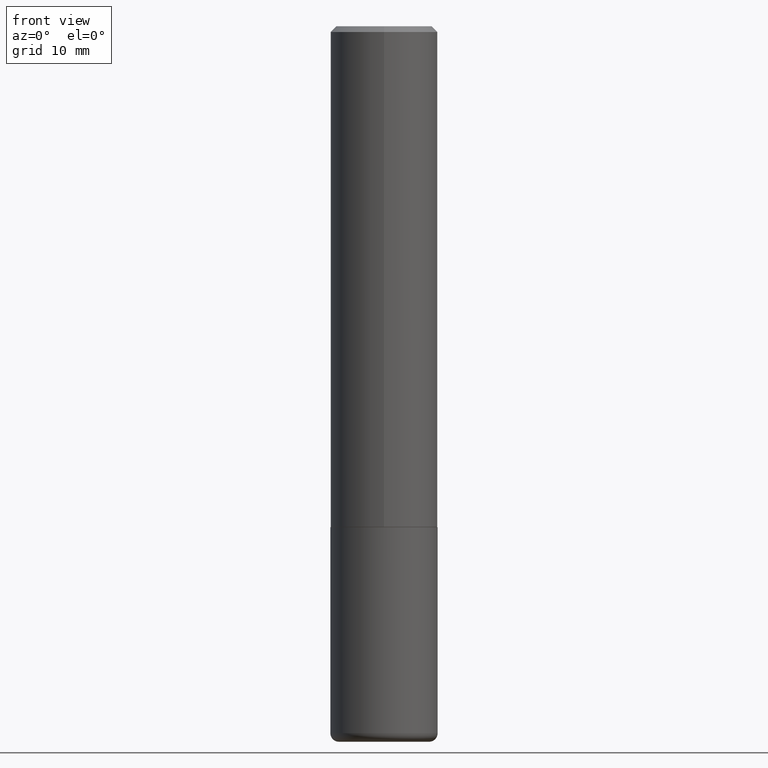
[diagram: clean part render]
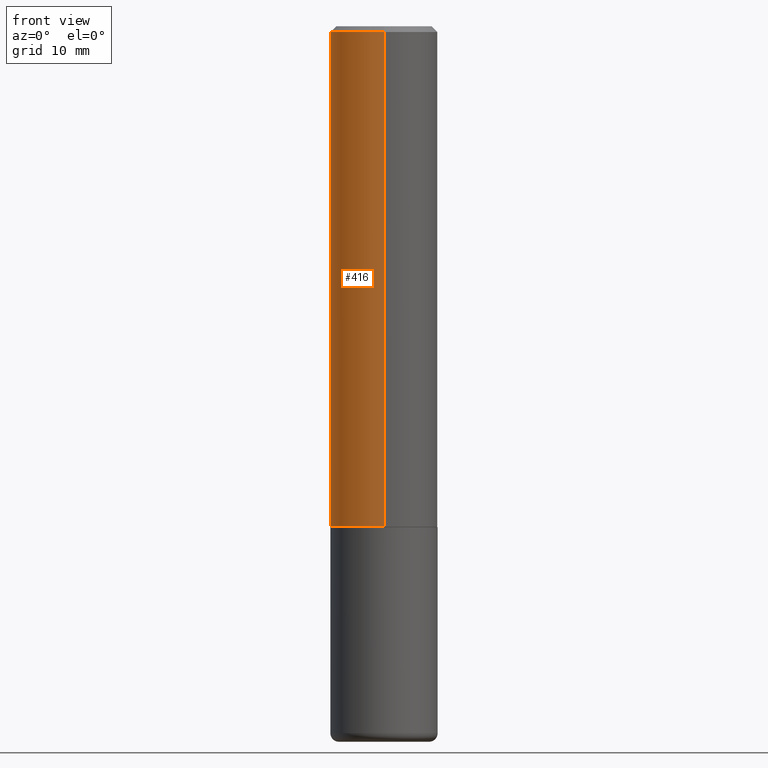
[diagram: same view with one face highlighted and labeled with its STEP entity id]
A machine part, front view. The second image highlights one B-rep face of the part: STEP entity #416.
In plain terms, the highlighted cylindrical surface (partial cylindrical patch) has radius 4.7625 mm, axis along (-0, 0, 1).
Its self-contained STEP definition (entity closure, byte-faithful):
#5 = LINE ( 'NONE', #258, #79 ) ;
#17 = CARTESIAN_POINT ( 'NONE',  ( 4.889301923890413792E-31, -6.985305076687091116E-17, -0.02000000000000005246 ) ) ;
#25 = CARTESIAN_POINT ( 'NONE',  ( 1.309305502066175205E-15, 0.1874999999999999167, -0.02000000000000070471 ) ) ;
#39 = CARTESIAN_POINT ( 'NONE',  ( -1.309305502066175797E-15, -0.1875000000000001110, 6.548723509394135303E-16 ) ) ;
#58 = DIRECTION ( 'NONE',  ( -2.444650961945200818E-29, 3.492652538343536856E-15, 1.000000000000000000 ) ) ;
#65 = CARTESIAN_POINT ( 'NONE',  ( -1.309305502066134185E-15, -0.1875000000000064115, -1.748999999999999666 ) ) ;
#72 = CYLINDRICAL_SURFACE ( 'NONE', #284, 0.1875000000000001110 ) ;
#79 = VECTOR ( 'NONE', #391, 39.37007874015748143 ) ;
#86 = EDGE_CURVE ( 'NONE', #99, #255, #278, .T. ) ;
#97 = DIRECTION ( 'NONE',  ( -2.444650961945200818E-29, 3.492652538343536856E-15, 1.000000000000000000 ) ) ;
#99 = VERTEX_POINT ( 'NONE', #25 ) ;
#104 = EDGE_CURVE ( 'NONE', #371, #333, #372, .T. ) ;
#109 = DIRECTION ( 'NONE',  ( -2.444650961945200818E-29, 3.492652538343536856E-15, 1.000000000000000000 ) ) ;
#128 = FACE_OUTER_BOUND ( 'NONE', #364, .T. ) ;
#146 = CARTESIAN_POINT ( 'NONE',  ( 4.275694532442156646E-29, -6.108649289562846914E-15, -1.749000000000000110 ) ) ;
#159 = DIRECTION ( 'NONE',  ( -2.444650961945200818E-29, 3.492652538343536856E-15, 1.000000000000000000 ) ) ;
#173 = ORIENTED_EDGE ( 'NONE', *, *, #260, .T. ) ;
#204 = CARTESIAN_POINT ( 'NONE',  ( 1.332267629550210528E-15, 0.1874999999999941713, -1.749000000000000554 ) ) ;
#222 = ORIENTED_EDGE ( 'NONE', *, *, #104, .T. ) ;
#224 = EDGE_CURVE ( 'NONE', #371, #99, #5, .T. ) ;
#231 = LINE ( 'NONE', #39, #318 ) ;
#255 = VERTEX_POINT ( 'NONE', #412 ) ;
#258 = CARTESIAN_POINT ( 'NONE',  ( 1.332267629550188440E-15, 0.1875000000000001110, -6.548723509394135303E-16 ) ) ;
#260 = EDGE_CURVE ( 'NONE', #333, #255, #231, .T. ) ;
#263 = CARTESIAN_POINT ( 'NONE',  ( 0.000000000000000000, 0.000000000000000000, 0.000000000000000000 ) ) ;
#278 = CIRCLE ( 'NONE', #382, 0.1874999999999999722 ) ;
#284 = AXIS2_PLACEMENT_3D ( 'NONE', #263, #159, #290 ) ;
#290 = DIRECTION ( 'NONE',  ( -6.982962677686266711E-15, -1.000000000000000000, 3.492652538343536856E-15 ) ) ;
#308 = DIRECTION ( 'NONE',  ( -6.982962677686266711E-15, -1.000000000000000000, 3.483106191921935949E-15 ) ) ;
#318 = VECTOR ( 'NONE', #58, 39.37007874015748143 ) ;
#333 = VERTEX_POINT ( 'NONE', #65 ) ;
#336 = ORIENTED_EDGE ( 'NONE', *, *, #86, .F. ) ;
#342 = ORIENTED_EDGE ( 'NONE', *, *, #224, .F. ) ;
#354 = AXIS2_PLACEMENT_3D ( 'NONE', #146, #97, #357 ) ;
#357 = DIRECTION ( 'NONE',  ( -6.982962677686266711E-15, -1.000000000000000000, 2.913971193241876428E-15 ) ) ;
#364 = EDGE_LOOP ( 'NONE', ( #342, #222, #173, #336 ) ) ;
#371 = VERTEX_POINT ( 'NONE', #204 ) ;
#372 = CIRCLE ( 'NONE', #354, 0.1875000000000002776 ) ;
#382 = AXIS2_PLACEMENT_3D ( 'NONE', #17, #109, #308 ) ;
#391 = DIRECTION ( 'NONE',  ( -2.444650961945200818E-29, 3.492652538343536856E-15, 1.000000000000000000 ) ) ;
#412 = CARTESIAN_POINT ( 'NONE',  ( -1.286343374582161379E-15, -0.1875000000000000555, -0.01999999999999939673 ) ) ;
#416 = ADVANCED_FACE ( 'NONE', ( #128 ), #72, .T. ) ;